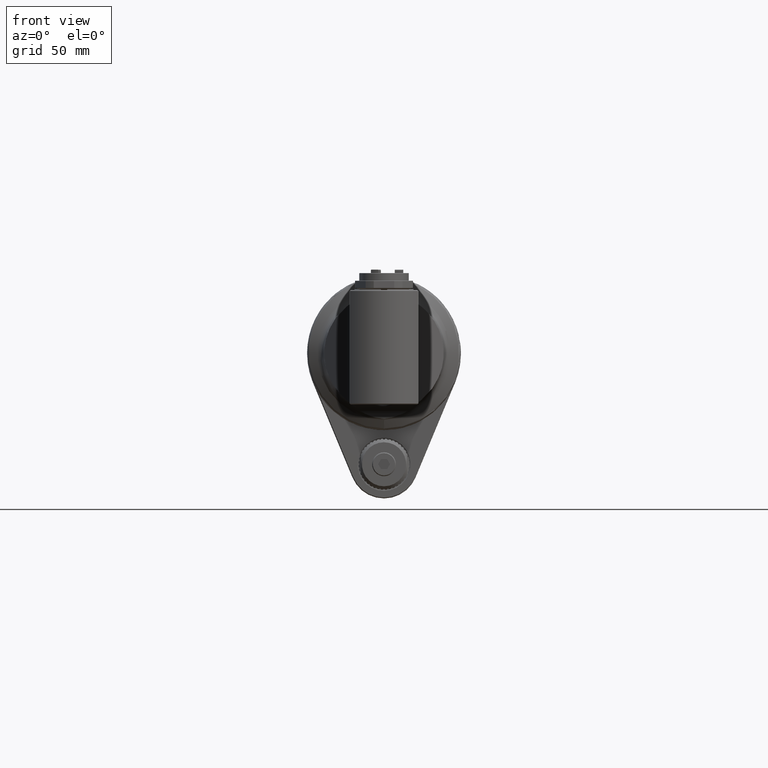
[diagram: clean part render]
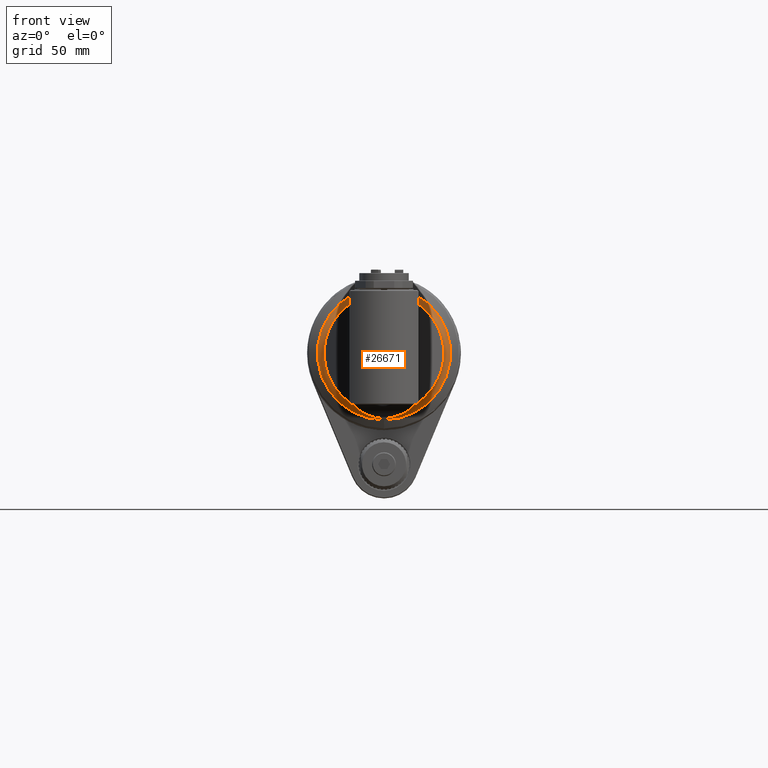
[diagram: same view with one face highlighted and labeled with its STEP entity id]
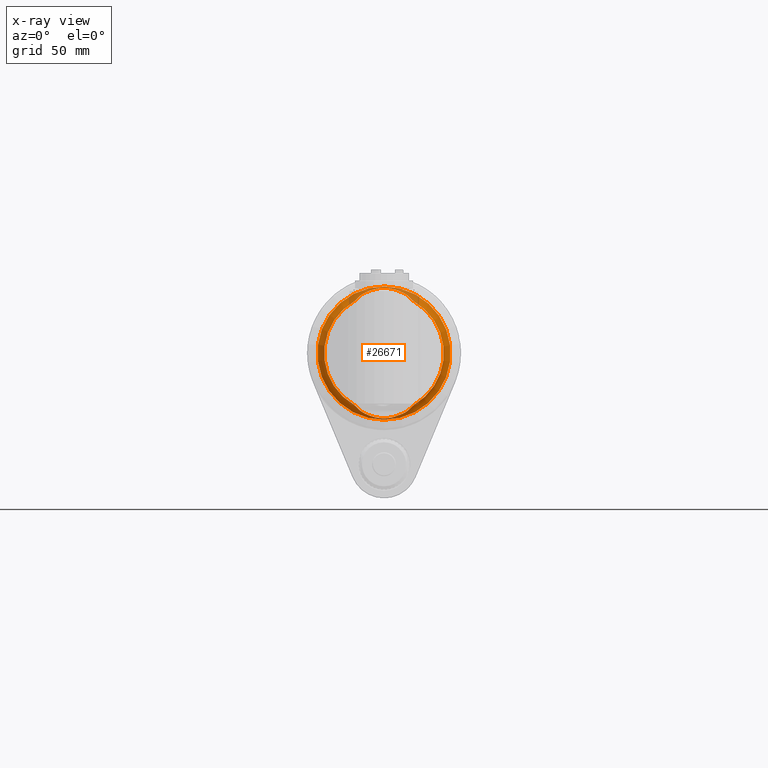
[diagram: x-ray of the same camera — body ghosted, the highlighted face saturated]
A machine part, front view. The second image highlights one B-rep face of the part: STEP entity #26671.
The next image is the same camera in x-ray: the body ghosted, the highlighted face saturated — about 12% of this face is hidden behind the body in this view.
In plain terms, the highlighted toroidal blend (fillet) surface has major radius 43 mm and minor (blend) radius 8 mm.
Its self-contained STEP definition (entity closure, byte-faithful):
#108=TOROIDAL_SURFACE('',#28771,43.,8.);
#183=B_SPLINE_CURVE_WITH_KNOTS('',3,(#42299,#42300,#42301,#42302,#42303,
#42304,#42305,#42306,#42307,#42308,#42309,#42310),.UNSPECIFIED.,.F.,.F.,
(4,2,2,2,2,4),(-13.7378022038327,-13.6980223017479,-13.2930273056113,-12.8880323094747,
-12.6407192186863,-12.5778600971058),.UNSPECIFIED.);
#184=B_SPLINE_CURVE_WITH_KNOTS('',3,(#42313,#42314,#42315,#42316,#42317,
#42318,#42319,#42320,#42321,#42322),.UNSPECIFIED.,.F.,.F.,(4,2,2,2,4),(-14.8181845063887,
-14.7553253848095,-14.5080122940211,-14.1030172978845,-13.7378022038327),
 .UNSPECIFIED.);
#185=B_SPLINE_CURVE_WITH_KNOTS('',3,(#42324,#42325,#42326,#42327,#42328,
#42329,#42330,#42331,#42332,#42333,#42334,#42335,#42336,#42337,#42338,#42339,
#42340,#42341,#42342,#42343,#42344,#42345,#42346,#42347,#42348,#42349,#42350,
#42351,#42352,#42353,#42354,#42355,#42356,#42357,#42358,#42359,#42360,#42361,
#42362,#42363,#42364,#42365,#42366,#42367,#42368,#42369,#42370,#42371,#42372,
#42373,#42374,#42375,#42376,#42377,#42378,#42379,#42380,#42381,#42382,#42383,
#42384,#42385,#42386,#42387,#42388,#42389,#42390,#42391,#42392,#42393,#42394,
#42395,#42396,#42397,#42398,#42399),.UNSPECIFIED.,.F.,.F.,(4,3,3,3,3,3,
3,3,3,3,3,3,3,3,3,3,3,3,3,3,3,3,3,3,3,4),(0.,0.04166666666667,0.08333333333333,
0.125,0.1666666666667,0.2083333333333,0.25,0.2916666666667,0.3333333333333,
0.375,0.4166666666667,0.4583333333333,0.5,0.5416666666667,0.5833333333333,
0.625,0.6666666666667,0.7083333333333,0.75,0.7916666666667,0.8333333333333,
0.875,0.9166666666667,0.95557840806874,0.9583333333333,1.),
 .UNSPECIFIED.);
#186=B_SPLINE_CURVE_WITH_KNOTS('',3,(#42403,#42404,#42405,#42406,#42407,
#42408,#42409,#42410,#42411,#42412,#42413,#42414,#42415,#42416,#42417,#42418,
#42419,#42420,#42421,#42422,#42423,#42424,#42425,#42426,#42427,#42428,#42429,
#42430,#42431,#42432,#42433,#42434,#42435,#42436,#42437,#42438,#42439,#42440,
#42441,#42442,#42443,#42444,#42445,#42446,#42447,#42448,#42449,#42450,#42451,
#42452,#42453,#42454,#42455,#42456,#42457,#42458,#42459,#42460,#42461,#42462,
#42463,#42464,#42465,#42466,#42467,#42468,#42469,#42470,#42471,#42472,#42473,
#42474,#42475,#42476,#42477,#42478),.UNSPECIFIED.,.F.,.F.,(4,3,3,3,3,3,
3,3,3,3,3,3,3,3,3,3,3,3,3,3,3,3,3,3,3,4),(0.,0.04166666666667,0.0804342178607859,
0.08333333333333,0.125,0.1666666666667,0.2083333333333,0.25,0.2916666666667,
0.3333333333333,0.375,0.4166666666667,0.4583333333333,0.5,0.5416666666667,
0.5833333333333,0.625,0.6666666666667,0.7083333333333,0.75,0.7916666666667,
0.8333333333333,0.875,0.9166666666667,0.9583333333333,1.),.UNSPECIFIED.);
#187=B_SPLINE_CURVE_WITH_KNOTS('',3,(#42480,#42481,#42482,#42483,#42484,
#42485,#42486,#42487,#42488,#42489,#42490,#42491,#42492,#42493,#42494,#42495,
#42496,#42497),.UNSPECIFIED.,.F.,.F.,(4,2,2,2,2,2,2,2,4),(12.5778600971084,
12.640719218692,12.8880323094802,13.2930273056156,13.698022301751,14.1030172978864,
14.5080122940217,14.75532538481,14.8181845063923),.UNSPECIFIED.);
#188=B_SPLINE_CURVE_WITH_KNOTS('',3,(#42499,#42500,#42501,#42502,#42503,
#42504,#42505,#42506,#42507,#42508,#42509,#42510,#42511,#42512,#42513,#42514,
#42515,#42516,#42517,#42518,#42519,#42520,#42521,#42522,#42523,#42524,#42525,
#42526,#42527,#42528,#42529,#42530,#42531,#42532,#42533,#42534,#42535,#42536,
#42537,#42538,#42539,#42540,#42541,#42542,#42543,#42544,#42545,#42546,#42547,
#42548,#42549,#42550,#42551,#42552,#42553,#42554,#42555,#42556,#42557,#42558,
#42559,#42560,#42561,#42562,#42563,#42564,#42565,#42566,#42567,#42568,#42569,
#42570,#42571,#42572,#42573,#42574,#42575,#42576,#42577),.UNSPECIFIED.,
 .F.,.F.,(4,3,3,3,3,3,3,3,3,3,3,3,3,3,3,3,3,3,3,3,3,3,3,3,3,3,4),(0.,0.04166666666667,
0.08333333333333,0.125,0.1666666666667,0.2083333333333,0.25,0.2916666666667,
0.3333333333333,0.375,0.4166666666667,0.4583333333333,0.5,0.5416666666667,
0.5833333333333,0.625,0.6666666666667,0.7083333333333,0.75,0.789126732267477,
0.7916666666667,0.8333333333333,0.875,0.9166666666667,0.954957464717606,
0.9583333333333,1.),.UNSPECIFIED.);
#189=B_SPLINE_CURVE_WITH_KNOTS('',3,(#42580,#42581,#42582,#42583,#42584,
#42585,#42586,#42587,#42588,#42589,#42590,#42591,#42592,#42593,#42594,#42595,
#42596,#42597,#42598,#42599,#42600,#42601,#42602,#42603,#42604,#42605,#42606,
#42607,#42608,#42609,#42610,#42611,#42612,#42613,#42614,#42615,#42616,#42617,
#42618,#42619,#42620,#42621,#42622,#42623,#42624,#42625,#42626,#42627,#42628,
#42629,#42630,#42631,#42632,#42633,#42634,#42635,#42636,#42637,#42638,#42639,
#42640,#42641,#42642,#42643,#42644,#42645,#42646,#42647,#42648,#42649,#42650,
#42651,#42652,#42653,#42654,#42655),.UNSPECIFIED.,.F.,.F.,(4,3,3,3,3,3,
3,3,3,3,3,3,3,3,3,3,3,3,3,3,3,3,3,3,3,4),(0.,0.04166666666667,0.0805791188444732,
0.08333333333333,0.125,0.1666666666667,0.2083333333333,0.25,0.2916666666667,
0.3333333333333,0.375,0.4166666666667,0.4583333333333,0.5,0.5416666666667,
0.5833333333333,0.625,0.6666666666667,0.7083333333333,0.75,0.7916666666667,
0.8333333333333,0.875,0.9166666666667,0.9583333333333,1.),.UNSPECIFIED.);
#1482=CIRCLE('',#28769,39.);
#1483=CIRCLE('',#28770,39.);
#1484=CIRCLE('',#28772,8.);
#1485=CIRCLE('',#28773,35.);
#1486=CIRCLE('',#28774,35.);
#2695=FACE_OUTER_BOUND('',#4280,.T.);
#4280=EDGE_LOOP('',(#19856,#19857,#19858,#19859,#19860,#19861,#19862,#19863,
#19864,#19865,#19866,#19867,#19868));
#11434=VERTEX_POINT('',#42291);
#11435=VERTEX_POINT('',#42293);
#11436=VERTEX_POINT('',#42297);
#11437=VERTEX_POINT('',#42298);
#11438=VERTEX_POINT('',#42312);
#11439=VERTEX_POINT('',#42323);
#11440=VERTEX_POINT('',#42400);
#11441=VERTEX_POINT('',#42402);
#11442=VERTEX_POINT('',#42479);
#11443=VERTEX_POINT('',#42498);
#11444=VERTEX_POINT('',#42578);
#14519=EDGE_CURVE('',#11435,#11434,#1482,.T.);
#14520=EDGE_CURVE('',#11434,#11435,#1483,.T.);
#14521=EDGE_CURVE('',#11436,#11437,#183,.F.);
#14522=EDGE_CURVE('',#11437,#11435,#1484,.T.);
#14523=EDGE_CURVE('',#11437,#11438,#184,.F.);
#14524=EDGE_CURVE('',#11438,#11439,#185,.T.);
#14525=EDGE_CURVE('',#11440,#11439,#1485,.T.);
#14526=EDGE_CURVE('',#11440,#11441,#186,.T.);
#14527=EDGE_CURVE('',#11441,#11442,#187,.T.);
#14528=EDGE_CURVE('',#11442,#11443,#188,.T.);
#14529=EDGE_CURVE('',#11444,#11443,#1486,.T.);
#14530=EDGE_CURVE('',#11444,#11436,#189,.T.);
#19856=ORIENTED_EDGE('',*,*,#14521,.T.);
#19857=ORIENTED_EDGE('',*,*,#14522,.T.);
#19858=ORIENTED_EDGE('',*,*,#14519,.T.);
#19859=ORIENTED_EDGE('',*,*,#14520,.T.);
#19860=ORIENTED_EDGE('',*,*,#14522,.F.);
#19861=ORIENTED_EDGE('',*,*,#14523,.T.);
#19862=ORIENTED_EDGE('',*,*,#14524,.T.);
#19863=ORIENTED_EDGE('',*,*,#14525,.F.);
#19864=ORIENTED_EDGE('',*,*,#14526,.T.);
#19865=ORIENTED_EDGE('',*,*,#14527,.T.);
#19866=ORIENTED_EDGE('',*,*,#14528,.T.);
#19867=ORIENTED_EDGE('',*,*,#14529,.F.);
#19868=ORIENTED_EDGE('',*,*,#14530,.T.);
#26671=ADVANCED_FACE('',(#2695),#108,.F.);
#28769=AXIS2_PLACEMENT_3D('',#42294,#33065,#33066);
#28770=AXIS2_PLACEMENT_3D('',#42295,#33067,#33068);
#28771=AXIS2_PLACEMENT_3D('',#42296,#33069,#33070);
#28772=AXIS2_PLACEMENT_3D('',#42311,#33071,#33072);
#28773=AXIS2_PLACEMENT_3D('',#42401,#33073,#33074);
#28774=AXIS2_PLACEMENT_3D('',#42579,#33075,#33076);
#33065=DIRECTION('center_axis',(0.,1.,0.));
#33066=DIRECTION('ref_axis',(-1.,0.,0.));
#33067=DIRECTION('center_axis',(0.,1.,0.));
#33068=DIRECTION('ref_axis',(-1.,0.,0.));
#33069=DIRECTION('center_axis',(0.,1.,0.));
#33070=DIRECTION('ref_axis',(0.999945003641186,0.,0.0104875971046199));
#33071=DIRECTION('center_axis',(0.0104875971046197,0.,-0.999945003641186));
#33072=DIRECTION('ref_axis',(-0.999945003641186,0.,-0.0104875971046197));
#33073=DIRECTION('center_axis',(0.,1.,0.));
#33074=DIRECTION('ref_axis',(0.865703462490004,0.,-0.500557204555902));
#33075=DIRECTION('center_axis',(0.,1.,0.));
#33076=DIRECTION('ref_axis',(-0.865703462490004,0.,0.500557204555902));
#42291=CARTESIAN_POINT('',(38.9999999999974,38.4641016151356,4.77612251667436E-15));
#42293=CARTESIAN_POINT('',(-38.9978551420063,38.46410161514,-0.409016287080169));
#42294=CARTESIAN_POINT('Origin',(0.,38.46410161514,0.));
#42295=CARTESIAN_POINT('Origin',(0.,38.46410161514,0.));
#42296=CARTESIAN_POINT('Origin',(0.,45.39230484541,0.));
#42297=CARTESIAN_POINT('',(-35.26383885339,40.04367285338,11.36788069341));
#42298=CARTESIAN_POINT('',(-38.2413415089381,38.9599505143173,-0.401081840526887));
#42299=CARTESIAN_POINT('Ctrl Pts',(-38.2413415089381,38.9599505143173,-0.401081840527046));
#42300=CARTESIAN_POINT('Ctrl Pts',(-38.2441246155634,38.9589375463469,-0.266341423830267));
#42301=CARTESIAN_POINT('Ctrl Pts',(-38.2454847436221,38.9584425002188,-0.132599673616175));
#42302=CARTESIAN_POINT('Ctrl Pts',(-38.2454847436221,38.9584425002188,1.34998332045535));
#42303=CARTESIAN_POINT('Ctrl Pts',(-38.0909820629314,39.0146768771045,2.81798982273538));
#42304=CARTESIAN_POINT('Ctrl Pts',(-37.4896495701843,39.2335440053616,5.69207543368899));
#42305=CARTESIAN_POINT('Ctrl Pts',(-37.0504436962752,39.3934018701794,7.09995497122563));
#42306=CARTESIAN_POINT('Ctrl Pts',(-36.2869596295705,39.6712873447964,9.11681253003508));
#42307=CARTESIAN_POINT('Ctrl Pts',(-35.9382018007334,39.7982248134605,9.9435818588829));
#42308=CARTESIAN_POINT('Ctrl Pts',(-35.4619060514545,39.9715822889055,10.9600495702855));
#42309=CARTESIAN_POINT('Ctrl Pts',(-35.3634834504906,40.0074051860354,11.1650514609152));
#42310=CARTESIAN_POINT('Ctrl Pts',(-35.2638388533836,40.0436728533878,11.3678806934175));
#42311=CARTESIAN_POINT('Origin',(-42.997635156571,45.39230484541,-0.450966675498648));
#42312=CARTESIAN_POINT('',(-35.26383885339,40.04367285338,-11.36788069341));
#42313=CARTESIAN_POINT('Ctrl Pts',(-35.2638388533896,40.0436728533856,-11.3678806934053));
#42314=CARTESIAN_POINT('Ctrl Pts',(-35.3634834504946,40.007405186034,-11.165051460907));
#42315=CARTESIAN_POINT('Ctrl Pts',(-35.4619060514564,39.9715822889048,-10.9600495702814));
#42316=CARTESIAN_POINT('Ctrl Pts',(-35.9382018007334,39.7982248134605,-9.9435818588829));
#42317=CARTESIAN_POINT('Ctrl Pts',(-36.2869596295705,39.6712873447964,-9.11681253003508));
#42318=CARTESIAN_POINT('Ctrl Pts',(-37.0504436962752,39.3934018701794,-7.09995497122563));
#42319=CARTESIAN_POINT('Ctrl Pts',(-37.4896495701843,39.2335440053616,-5.69207543368899));
#42320=CARTESIAN_POINT('Ctrl Pts',(-38.061449663877,39.0254257913068,-2.95914075704057));
#42321=CARTESIAN_POINT('Ctrl Pts',(-38.2157900999439,38.9692504666347,-1.63811942426772));
#42322=CARTESIAN_POINT('Ctrl Pts',(-38.2413415089381,38.9599505143173,-0.401081840527046));
#42323=CARTESIAN_POINT('',(-30.29962118715,45.39230484541,-17.51950215946));
#42324=CARTESIAN_POINT('Ctrl Pts',(-35.2638388533917,40.0436728533816,-11.3678806934105));
#42325=CARTESIAN_POINT('Ctrl Pts',(-35.18904577304,40.07089530836,-11.52012400137));
#42326=CARTESIAN_POINT('Ctrl Pts',(-35.1138103405742,40.0995480447008,-11.6669347504388));
#42327=CARTESIAN_POINT('Ctrl Pts',(-35.0385230093969,40.1295481898045,-11.808283002059));
#42328=CARTESIAN_POINT('Ctrl Pts',(-34.9632356782196,40.1595483349081,-11.9496312536792));
#42329=CARTESIAN_POINT('Ctrl Pts',(-34.8878975485239,40.1908969065948,-12.0855173765078));
#42330=CARTESIAN_POINT('Ctrl Pts',(-34.8125372282882,40.2236337636182,-12.2165789244799));
#42331=CARTESIAN_POINT('Ctrl Pts',(-34.7371769080525,40.2563706206415,-12.347640472452));
#42332=CARTESIAN_POINT('Ctrl Pts',(-34.6617940365719,40.2904954488441,-12.4738773137666));
#42333=CARTESIAN_POINT('Ctrl Pts',(-34.5863538669918,40.3260897655436,-12.5959111226894));
#42334=CARTESIAN_POINT('Ctrl Pts',(-34.5109136974117,40.3616840822431,-12.7179449316123));
#42335=CARTESIAN_POINT('Ctrl Pts',(-34.4354158077517,40.398747516227,-12.8357755563637));
#42336=CARTESIAN_POINT('Ctrl Pts',(-34.3599050800852,40.4373308213293,-12.9498199062475));
#42337=CARTESIAN_POINT('Ctrl Pts',(-34.284394352419,40.4759141264315,-13.063864256131));
#42338=CARTESIAN_POINT('Ctrl Pts',(-34.2088705765836,40.5160171268097,-13.1741222514495));
#42339=CARTESIAN_POINT('Ctrl Pts',(-34.1332670345877,40.5577592310929,-13.2811152319705));
#42340=CARTESIAN_POINT('Ctrl Pts',(-34.0576634925917,40.5995013353762,-13.3881082124917));
#42341=CARTESIAN_POINT('Ctrl Pts',(-33.9819797509665,40.6428821902793,-13.4918360097537));
#42342=CARTESIAN_POINT('Ctrl Pts',(-33.9061494859549,40.688049485195,-13.5927427546316));
#42343=CARTESIAN_POINT('Ctrl Pts',(-33.8303192209434,40.7332167801106,-13.6936494995096));
#42344=CARTESIAN_POINT('Ctrl Pts',(-33.7543423049891,40.7801704133908,-13.7917351415805));
#42345=CARTESIAN_POINT('Ctrl Pts',(-33.6782976927495,40.8289861669899,-13.8872222156984));
#42346=CARTESIAN_POINT('Ctrl Pts',(-33.60225308051,40.8778019205888,-13.9827092898161));
#42347=CARTESIAN_POINT('Ctrl Pts',(-33.526140463779,40.9284795672352,-14.0755976674669));
#42348=CARTESIAN_POINT('Ctrl Pts',(-33.449937698067,40.9811733145871,-14.1662235334725));
#42349=CARTESIAN_POINT('Ctrl Pts',(-33.3737349323549,41.0338670619392,-14.2568493994783));
#42350=CARTESIAN_POINT('Ctrl Pts',(-33.2974416034183,41.0885766070035,-14.3452125802106));
#42351=CARTESIAN_POINT('Ctrl Pts',(-33.2210269056098,41.1454974790654,-14.4316293900542));
#42352=CARTESIAN_POINT('Ctrl Pts',(-33.1446122078013,41.2024183511273,-14.5180461998978));
#42353=CARTESIAN_POINT('Ctrl Pts',(-33.0680763840251,41.2615507154982,-14.6025167446197));
#42354=CARTESIAN_POINT('Ctrl Pts',(-32.9915486757508,41.322991690518,-14.6851783660315));
#42355=CARTESIAN_POINT('Ctrl Pts',(-32.9150209674766,41.3844326655377,-14.7678399874432));
#42356=CARTESIAN_POINT('Ctrl Pts',(-32.8385009515276,41.4481819870382,-14.84869249446));
#42357=CARTESIAN_POINT('Ctrl Pts',(-32.7620461401956,41.5144097578074,-14.9279659805876));
#42358=CARTESIAN_POINT('Ctrl Pts',(-32.6855913288634,41.5806375285767,-15.0072394667154));
#42359=CARTESIAN_POINT('Ctrl Pts',(-32.6092013822321,41.6493435252295,-15.0849337814687));
#42360=CARTESIAN_POINT('Ctrl Pts',(-32.5329448485884,41.7207251439324,-15.1612722950043));
#42361=CARTESIAN_POINT('Ctrl Pts',(-32.4566883149448,41.7921067626354,-15.2376108085398));
#42362=CARTESIAN_POINT('Ctrl Pts',(-32.3805661414724,41.8661645459113,-15.312593961655));
#42363=CARTESIAN_POINT('Ctrl Pts',(-32.3048299753274,41.942936646898,-15.3862896405833));
#42364=CARTESIAN_POINT('Ctrl Pts',(-32.2290938091826,42.0197087478846,-15.4599853195113));
#42365=CARTESIAN_POINT('Ctrl Pts',(-32.1537431436275,42.0991949122542,-15.5323932794006));
#42366=CARTESIAN_POINT('Ctrl Pts',(-32.0789570286577,42.1815065663386,-15.6036850232953));
#42367=CARTESIAN_POINT('Ctrl Pts',(-32.0041709136878,42.2638182204232,-15.6749767671902));
#42368=CARTESIAN_POINT('Ctrl Pts',(-31.9299496064713,42.3489554577522,-15.7451524275928));
#42369=CARTESIAN_POINT('Ctrl Pts',(-31.8565235239857,42.4369873620788,-15.814358291392));
#42370=CARTESIAN_POINT('Ctrl Pts',(-31.7830974415,42.5250192664054,-15.8835641551912));
#42371=CARTESIAN_POINT('Ctrl Pts',(-31.7104684821179,42.6159466895156,-15.9518011627567));
#42372=CARTESIAN_POINT('Ctrl Pts',(-31.6390206473186,42.7096221556081,-16.0191007408212));
#42373=CARTESIAN_POINT('Ctrl Pts',(-31.5675728125196,42.8032976217003,-16.0864003188855));
#42374=CARTESIAN_POINT('Ctrl Pts',(-31.4973056661358,42.8997209841853,-16.152762240602));
#42375=CARTESIAN_POINT('Ctrl Pts',(-31.4285145229428,42.9988045192172,-16.2183209197753));
#42376=CARTESIAN_POINT('Ctrl Pts',(-31.3597233797496,43.0978880542494,-16.2838795989487));
#42377=CARTESIAN_POINT('Ctrl Pts',(-31.2924083282056,43.1996317538774,-16.3486350892282));
#42378=CARTESIAN_POINT('Ctrl Pts',(-31.2268467134278,43.3039383344998,-16.4127449779664));
#42379=CARTESIAN_POINT('Ctrl Pts',(-31.1612850986499,43.4082449151222,-16.4768548667046));
#42380=CARTESIAN_POINT('Ctrl Pts',(-31.097479342711,43.5151151101965,-16.5403204282198));
#42381=CARTESIAN_POINT('Ctrl Pts',(-31.035799273906,43.624221535363,-16.6032011585323));
#42382=CARTESIAN_POINT('Ctrl Pts',(-30.9741192051011,43.7333279605292,-16.6660818888446));
#42383=CARTESIAN_POINT('Ctrl Pts',(-30.914564934549,43.8446707106897,-16.7283778348886));
#42384=CARTESIAN_POINT('Ctrl Pts',(-30.8574316389797,43.9579212686633,-16.7901941868355));
#42385=CARTESIAN_POINT('Ctrl Pts',(-30.8002983434102,44.0711718266372,-16.8520105387825));
#42386=CARTESIAN_POINT('Ctrl Pts',(-30.7455839225764,44.1863297186771,-16.9133461605231));
#42387=CARTESIAN_POINT('Ctrl Pts',(-30.6934499537132,44.3032502807217,-16.9744179914082));
#42388=CARTESIAN_POINT('Ctrl Pts',(-30.64131598485,44.4201708427662,-17.0354898222934));
#42389=CARTESIAN_POINT('Ctrl Pts',(-30.5917652832135,44.5388544635792,-17.0962994285284));
#42390=CARTESIAN_POINT('Ctrl Pts',(-30.5450260671308,44.6589106548984,-17.1569417642404));
#42391=CARTESIAN_POINT('Ctrl Pts',(-30.5013771641817,44.7710289461861,-17.2135745374863));
#42392=CARTESIAN_POINT('Ctrl Pts',(-30.4601805666482,44.8843443313574,-17.2700615899841));
#42393=CARTESIAN_POINT('Ctrl Pts',(-30.421584728575,44.9984769070792,-17.3264610566366));
#42394=CARTESIAN_POINT('Ctrl Pts',(-30.4188521690548,45.006557417101,-17.330454101152));
#42395=CARTESIAN_POINT('Ctrl Pts',(-30.4161326275239,45.0146420182391,-17.3344466963631));
#42396=CARTESIAN_POINT('Ctrl Pts',(-30.4134261482071,45.0227305734612,-17.3384388581298));
#42397=CARTESIAN_POINT('Ctrl Pts',(-30.3724921987516,45.1450653382521,-17.3988180182302));
#42398=CARTESIAN_POINT('Ctrl Pts',(-30.3345471097371,45.26830571151,-17.4590984896283));
#42399=CARTESIAN_POINT('Ctrl Pts',(-30.2996211871486,45.39230484541,-17.5195021594592));
#42400=CARTESIAN_POINT('',(30.29962118715,45.39230484541,-17.51950215946));
#42401=CARTESIAN_POINT('Origin',(0.,45.39230484541,0.));
#42402=CARTESIAN_POINT('',(35.26383885339,40.04367285338,-11.36788069341));
#42403=CARTESIAN_POINT('Ctrl Pts',(30.2996211871509,45.3923048454102,-17.51950215946));
#42404=CARTESIAN_POINT('Ctrl Pts',(30.3345527138843,45.2682858148512,-17.45908879737));
#42405=CARTESIAN_POINT('Ctrl Pts',(30.372500185549,45.1450428455582,-17.398806152005));
#42406=CARTESIAN_POINT('Ctrl Pts',(30.4134266024378,45.0227292159348,-17.3384381881242));
#42407=CARTESIAN_POINT('Ctrl Pts',(30.451505409524,44.9089260183788,-17.2822705529985));
#42408=CARTESIAN_POINT('Ctrl Pts',(30.4921665983406,44.7959284468445,-17.2260290590276));
#42409=CARTESIAN_POINT('Ctrl Pts',(30.535271825354,44.6840914241773,-17.1696485203548));
#42410=CARTESIAN_POINT('Ctrl Pts',(30.538495320951,44.6757280266236,-17.1654322702441));
#42411=CARTESIAN_POINT('Ctrl Pts',(30.5417324619663,44.6673711104625,-17.1612152425467));
#42412=CARTESIAN_POINT('Ctrl Pts',(30.5449831796961,44.6590208197155,-17.1569974100017));
#42413=CARTESIAN_POINT('Ctrl Pts',(30.5917031442358,44.5390087731378,-17.0963778781567));
#42414=CARTESIAN_POINT('Ctrl Pts',(30.6412314109162,44.4203667838004,-17.0355920968634));
#42415=CARTESIAN_POINT('Ctrl Pts',(30.6933739950308,44.3034206366229,-16.97450697486));
#42416=CARTESIAN_POINT('Ctrl Pts',(30.7455165791456,44.1864744894452,-16.9134218528567));
#42417=CARTESIAN_POINT('Ctrl Pts',(30.8002740339954,44.0712244280623,-16.8520373901433));
#42418=CARTESIAN_POINT('Ctrl Pts',(30.8573878631008,43.9580080440001,-16.7902415510299));
#42419=CARTESIAN_POINT('Ctrl Pts',(30.9145016922062,43.8447916599382,-16.7284457119166));
#42420=CARTESIAN_POINT('Ctrl Pts',(30.9739696734227,43.7336078444873,-16.6662384964034));
#42421=CARTESIAN_POINT('Ctrl Pts',(31.0355665695413,43.6246331977711,-16.6034383996435));
#42422=CARTESIAN_POINT('Ctrl Pts',(31.0971634656602,43.5156585510546,-16.5406383028834));
#42423=CARTESIAN_POINT('Ctrl Pts',(31.1608914550911,43.4088943604792,-16.4772453248767));
#42424=CARTESIAN_POINT('Ctrl Pts',(31.2264089464964,43.3046348834942,-16.4131730700833));
#42425=CARTESIAN_POINT('Ctrl Pts',(31.2919264379017,43.2003754065092,-16.34910081529));
#42426=CARTESIAN_POINT('Ctrl Pts',(31.359233204749,43.0986203797158,-16.2843492837099));
#42427=CARTESIAN_POINT('Ctrl Pts',(31.427950753558,42.9996166539461,-16.2188582109815));
#42428=CARTESIAN_POINT('Ctrl Pts',(31.4966683023668,42.9006129281766,-16.1533671382533));
#42429=CARTESIAN_POINT('Ctrl Pts',(31.5667928291385,42.8043579030815,-16.0871365243767));
#42430=CARTESIAN_POINT('Ctrl Pts',(31.6381011161353,42.7108280008427,-16.0199668874052));
#42431=CARTESIAN_POINT('Ctrl Pts',(31.7094094031323,42.6172980986036,-15.9527972504334));
#42432=CARTESIAN_POINT('Ctrl Pts',(31.7819027894927,42.5264944154799,-15.8846885903667));
#42433=CARTESIAN_POINT('Ctrl Pts',(31.8552839104644,42.4384739103048,-15.81552664851));
#42434=CARTESIAN_POINT('Ctrl Pts',(31.9286650314361,42.3504534051297,-15.7463647066533));
#42435=CARTESIAN_POINT('Ctrl Pts',(32.0029342273449,42.2652163003686,-15.6761494830066));
#42436=CARTESIAN_POINT('Ctrl Pts',(32.0777608299753,42.1828234272733,-15.6048252830515));
#42437=CARTESIAN_POINT('Ctrl Pts',(32.1525874326056,42.1004305541781,-15.5335010830966));
#42438=CARTESIAN_POINT('Ctrl Pts',(32.2279699523802,42.0208805182258,-15.4610679068334));
#42439=CARTESIAN_POINT('Ctrl Pts',(32.3036705628265,41.9441121699585,-15.3874177348552));
#42440=CARTESIAN_POINT('Ctrl Pts',(32.3793711732731,41.8673438216911,-15.3137675628768));
#42441=CARTESIAN_POINT('Ctrl Pts',(32.4553879560294,41.7933553282781,-15.2389003951834));
#42442=CARTESIAN_POINT('Ctrl Pts',(32.5316426124992,41.7219443891192,-15.1625758299917));
#42443=CARTESIAN_POINT('Ctrl Pts',(32.6078972689689,41.6505334499603,-15.0862512647999));
#42444=CARTESIAN_POINT('Ctrl Pts',(32.6843912190177,41.5817016237133,-15.0084693021099));
#42445=CARTESIAN_POINT('Ctrl Pts',(32.7609510543669,41.5153585331732,-14.9291013344865));
#42446=CARTESIAN_POINT('Ctrl Pts',(32.837510889716,41.4490154426333,-14.8497333668633));
#42447=CARTESIAN_POINT('Ctrl Pts',(32.9141364568191,41.3851608173178,-14.7687793943067));
#42448=CARTESIAN_POINT('Ctrl Pts',(32.9906839565823,41.3236860420037,-14.6861123108502));
#42449=CARTESIAN_POINT('Ctrl Pts',(33.0672314563458,41.2622112666895,-14.6034452273935));
#42450=CARTESIAN_POINT('Ctrl Pts',(33.1436991192438,41.2031141854614,-14.5190650330367));
#42451=CARTESIAN_POINT('Ctrl Pts',(33.2201484636459,41.146151911129,-14.4326227341067));
#42452=CARTESIAN_POINT('Ctrl Pts',(33.296597808048,41.0891896367966,-14.3461804351766));
#42453=CARTESIAN_POINT('Ctrl Pts',(33.3730301550858,41.0343639967873,-14.2576760316732));
#42454=CARTESIAN_POINT('Ctrl Pts',(33.4493839386778,40.9815562706454,-14.1668820619765));
#42455=CARTESIAN_POINT('Ctrl Pts',(33.5257377222695,40.9287485445037,-14.0760880922799));
#42456=CARTESIAN_POINT('Ctrl Pts',(33.6020132662059,40.8779591327835,-13.9830045563901));
#42457=CARTESIAN_POINT('Ctrl Pts',(33.6781250893378,40.8290969715613,-13.8874389422352));
#42458=CARTESIAN_POINT('Ctrl Pts',(33.75423691247,40.780234810339,-13.7918733280802));
#42459=CARTESIAN_POINT('Ctrl Pts',(33.8301842451049,40.7332986888694,-13.6938256356601));
#42460=CARTESIAN_POINT('Ctrl Pts',(33.9060048391108,40.6881356430001,-13.592935233825));
#42461=CARTESIAN_POINT('Ctrl Pts',(33.9818254331166,40.6429725971309,-13.4920448319899));
#42462=CARTESIAN_POINT('Ctrl Pts',(34.0575190128041,40.5995822191204,-13.3883117207398));
#42463=CARTESIAN_POINT('Ctrl Pts',(34.1331858041143,40.5578040805146,-13.2812301868614));
#42464=CARTESIAN_POINT('Ctrl Pts',(34.2088525954243,40.5160259419089,-13.1741486529832));
#42465=CARTESIAN_POINT('Ctrl Pts',(34.2844934673284,40.4758616172726,-13.0637186964768));
#42466=CARTESIAN_POINT('Ctrl Pts',(34.3600788707457,40.4372420220835,-12.9495574246969));
#42467=CARTESIAN_POINT('Ctrl Pts',(34.4356642741632,40.3986224268942,-12.8353961529169));
#42468=CARTESIAN_POINT('Ctrl Pts',(34.5111941385292,40.3615473819011,-12.7175035658634));
#42469=CARTESIAN_POINT('Ctrl Pts',(34.5866629924243,40.3259439233417,-12.595411045575));
#42470=CARTESIAN_POINT('Ctrl Pts',(34.6621318463193,40.2903404647824,-12.4733185252866));
#42471=CARTESIAN_POINT('Ctrl Pts',(34.7375395767737,40.2562083740206,-12.3470260717631));
#42472=CARTESIAN_POINT('Ctrl Pts',(34.8129110763181,40.223471374439,-12.2159287115097));
#42473=CARTESIAN_POINT('Ctrl Pts',(34.8882825758623,40.1907343748575,-12.0848313512566));
#42474=CARTESIAN_POINT('Ctrl Pts',(34.9636182795768,40.1593935288276,-11.9489290842734));
#42475=CARTESIAN_POINT('Ctrl Pts',(35.0388455239416,40.1294196776798,-11.8076774796895));
#42476=CARTESIAN_POINT('Ctrl Pts',(35.1140727683066,40.0994458265321,-11.6664258751052));
#42477=CARTESIAN_POINT('Ctrl Pts',(35.1891926973992,40.0708418322675,-11.51982493292));
#42478=CARTESIAN_POINT('Ctrl Pts',(35.2638388533914,40.0436728533839,-11.36788069341));
#42479=CARTESIAN_POINT('',(35.26383885339,40.04367285338,11.36788069341));
#42480=CARTESIAN_POINT('Ctrl Pts',(35.2638388533894,40.0436728533802,-11.3678806934217));
#42481=CARTESIAN_POINT('Ctrl Pts',(35.3634834505016,40.0074051860259,-11.1650514609094));
#42482=CARTESIAN_POINT('Ctrl Pts',(35.4619060514704,39.9715822888942,-10.9600495702693));
#42483=CARTESIAN_POINT('Ctrl Pts',(35.9382018007537,39.7982248134476,-9.94358185885663));
#42484=CARTESIAN_POINT('Ctrl Pts',(36.2869596295904,39.6712873447837,-9.11681253000929));
#42485=CARTESIAN_POINT('Ctrl Pts',(37.050443696293,39.3934018701674,-7.09995497120399));
#42486=CARTESIAN_POINT('Ctrl Pts',(37.4896495702007,39.2335440053501,-5.69207543367162));
#42487=CARTESIAN_POINT('Ctrl Pts',(38.0909820629463,39.0146768770936,-2.81798982272678));
#42488=CARTESIAN_POINT('Ctrl Pts',(38.2454847436367,38.9584425002079,-1.34998332045125));
#42489=CARTESIAN_POINT('Ctrl Pts',(38.2454847436367,38.9584425002079,1.34998332045125));
#42490=CARTESIAN_POINT('Ctrl Pts',(38.0909820629463,39.0146768770936,2.81798982272677));
#42491=CARTESIAN_POINT('Ctrl Pts',(37.4896495702007,39.2335440053501,5.69207543367161));
#42492=CARTESIAN_POINT('Ctrl Pts',(37.050443696293,39.3934018701674,7.09995497120399));
#42493=CARTESIAN_POINT('Ctrl Pts',(36.2869596295904,39.6712873447837,9.11681253000929));
#42494=CARTESIAN_POINT('Ctrl Pts',(35.9382018007537,39.7982248134476,9.94358185885663));
#42495=CARTESIAN_POINT('Ctrl Pts',(35.4619060514724,39.9715822888935,10.9600495702652));
#42496=CARTESIAN_POINT('Ctrl Pts',(35.3634834505055,40.0074051860245,11.1650514609012));
#42497=CARTESIAN_POINT('Ctrl Pts',(35.2638388533954,40.043672853378,11.3678806934095));
#42498=CARTESIAN_POINT('',(30.29962118715,45.39230484541,17.51950215946));
#42499=CARTESIAN_POINT('Ctrl Pts',(35.2638388533914,40.0436728533839,11.36788069341));
#42500=CARTESIAN_POINT('Ctrl Pts',(35.1891838521396,40.0708450516787,11.51984293769));
#42501=CARTESIAN_POINT('Ctrl Pts',(35.1140547226361,40.0994526932617,11.666461116095));
#42502=CARTESIAN_POINT('Ctrl Pts',(35.0388179453736,40.1294306662566,11.8077292612275));
#42503=CARTESIAN_POINT('Ctrl Pts',(34.9635811681112,40.1594086392516,11.94899740636));
#42504=CARTESIAN_POINT('Ctrl Pts',(34.8882355994496,40.1907540827896,12.08491551822));
#42505=CARTESIAN_POINT('Ctrl Pts',(34.8128540669454,40.223496136261,12.2160278698866));
#42506=CARTESIAN_POINT('Ctrl Pts',(34.7374725344413,40.2562381897323,12.3471402215533));
#42507=CARTESIAN_POINT('Ctrl Pts',(34.6620546028931,40.2903757905555,12.4734468130266));
#42508=CARTESIAN_POINT('Ctrl Pts',(34.5865755287769,40.3259851861536,12.5955525417849));
#42509=CARTESIAN_POINT('Ctrl Pts',(34.5110964546606,40.3615945817518,12.7176582705434));
#42510=CARTESIAN_POINT('Ctrl Pts',(34.435556350166,40.398675989111,12.8355631365868));
#42511=CARTESIAN_POINT('Ctrl Pts',(34.3599606739082,40.4373024147952,12.9497359425903));
#42512=CARTESIAN_POINT('Ctrl Pts',(34.2843649976506,40.4759288404793,13.0639087485934));
#42513=CARTESIAN_POINT('Ctrl Pts',(34.2087138209872,40.5161004650665,13.1743494945566));
#42514=CARTESIAN_POINT('Ctrl Pts',(34.1330368077146,40.5578863484239,13.2814410352631));
#42515=CARTESIAN_POINT('Ctrl Pts',(34.0573597944419,40.5996722317814,13.3885325759698));
#42516=CARTESIAN_POINT('Ctrl Pts',(33.9816560776152,40.6430708035063,13.4922749114199));
#42517=CARTESIAN_POINT('Ctrl Pts',(33.905825915416,40.6882422232555,13.5931733145333));
#42518=CARTESIAN_POINT('Ctrl Pts',(33.8299957532167,40.7334136430047,13.6940717176467));
#42519=CARTESIAN_POINT('Ctrl Pts',(33.7540394121357,40.7803583029408,13.7921261884235));
#42520=CARTESIAN_POINT('Ctrl Pts',(33.6779182426913,40.8292297671682,13.8876986535486));
#42521=CARTESIAN_POINT('Ctrl Pts',(33.6017970732471,40.8781012313953,13.9832711186734));
#42522=CARTESIAN_POINT('Ctrl Pts',(33.525511850302,40.928900718349,14.0763615781466));
#42523=CARTESIAN_POINT('Ctrl Pts',(33.4491479158426,40.9817195147769,14.1671627140214));
#42524=CARTESIAN_POINT('Ctrl Pts',(33.3727839813831,41.034538311205,14.2579638498965));
#42525=CARTESIAN_POINT('Ctrl Pts',(33.2963410106589,41.0893760154073,14.3464756621733));
#42526=CARTESIAN_POINT('Ctrl Pts',(33.2198803816505,41.1463516672718,14.4329258452583));
#42527=CARTESIAN_POINT('Ctrl Pts',(33.1434197526422,41.2033273191364,14.5193760283434));
#42528=CARTESIAN_POINT('Ctrl Pts',(33.0669401488699,41.2624390972054,14.6037645822368));
#42529=CARTESIAN_POINT('Ctrl Pts',(32.9903804286081,41.3239298153996,14.6864401016635));
#42530=CARTESIAN_POINT('Ctrl Pts',(32.9138207083464,41.3854205335937,14.7691156210901));
#42531=CARTESIAN_POINT('Ctrl Pts',(32.8371826530386,41.4492923626802,14.8500781060499));
#42532=CARTESIAN_POINT('Ctrl Pts',(32.7606114757049,41.5156528124942,14.9294533580381));
#42533=CARTESIAN_POINT('Ctrl Pts',(32.6840402983709,41.5820132623084,15.0088286100265));
#42534=CARTESIAN_POINT('Ctrl Pts',(32.6075361568784,41.6508626078382,15.0866166290433));
#42535=CARTESIAN_POINT('Ctrl Pts',(32.5312739528629,41.7222896532362,15.16294481434));
#42536=CARTESIAN_POINT('Ctrl Pts',(32.4550117488474,41.7937166986343,15.2392729996367));
#42537=CARTESIAN_POINT('Ctrl Pts',(32.3789900628118,41.8677198883853,15.3141413512135));
#42538=CARTESIAN_POINT('Ctrl Pts',(32.303288495315,41.9444996527937,15.3877894508218));
#42539=CARTESIAN_POINT('Ctrl Pts',(32.2275869278183,42.0212794172018,15.46143755043));
#42540=CARTESIAN_POINT('Ctrl Pts',(32.1522072964055,42.100837488322,15.5338653980699));
#42541=CARTESIAN_POINT('Ctrl Pts',(32.0773817357527,42.1832408840739,15.6051866288898));
#42542=CARTESIAN_POINT('Ctrl Pts',(32.0025561750996,42.265644279826,15.6765078597099));
#42543=CARTESIAN_POINT('Ctrl Pts',(31.9282861909661,42.3508944100134,15.74672247371));
#42544=CARTESIAN_POINT('Ctrl Pts',(31.8548990261997,42.4389356134615,15.8158894002617));
#42545=CARTESIAN_POINT('Ctrl Pts',(31.7815118614333,42.5269768169095,15.8850563268134));
#42546=CARTESIAN_POINT('Ctrl Pts',(31.7090071156842,42.6178088159656,15.9531755659168));
#42547=CARTESIAN_POINT('Ctrl Pts',(31.637676643841,42.7113848008619,16.0203667230352));
#42548=CARTESIAN_POINT('Ctrl Pts',(31.5663461719979,42.804960785758,16.0875578801534));
#42549=CARTESIAN_POINT('Ctrl Pts',(31.4961889708216,42.9012799138807,16.1538209552866));
#42550=CARTESIAN_POINT('Ctrl Pts',(31.427439784757,43.000352912231,16.2193452048682));
#42551=CARTESIAN_POINT('Ctrl Pts',(31.3586905986922,43.0994259105816,16.2848694544499));
#42552=CARTESIAN_POINT('Ctrl Pts',(31.2913533572869,43.2012554682311,16.3496548784799));
#42553=CARTESIAN_POINT('Ctrl Pts',(31.2258200106522,43.3055722144687,16.4137490404817));
#42554=CARTESIAN_POINT('Ctrl Pts',(31.1642814736515,43.4035299760938,16.4739361232788));
#42555=CARTESIAN_POINT('Ctrl Pts',(31.1043335178495,43.5036808830023,16.5335136518564));
#42556=CARTESIAN_POINT('Ctrl Pts',(31.0462723774832,43.6057527653999,16.592539179721));
#42557=CARTESIAN_POINT('Ctrl Pts',(31.0425033050581,43.6123788205359,16.596370855917));
#42558=CARTESIAN_POINT('Ctrl Pts',(31.0387421700278,43.6190129586503,16.6002002059642));
#42559=CARTESIAN_POINT('Ctrl Pts',(31.0349890476377,43.6256551003174,16.6040272456068));
#42560=CARTESIAN_POINT('Ctrl Pts',(30.9734204891595,43.7346169313307,16.6668083887567));
#42561=CARTESIAN_POINT('Ctrl Pts',(30.9140094773015,43.8457345931158,16.7289677750833));
#42562=CARTESIAN_POINT('Ctrl Pts',(30.8569663928579,43.9588436433502,16.7906976120149));
#42563=CARTESIAN_POINT('Ctrl Pts',(30.7999233084141,44.0719526935849,16.8524274489466));
#42564=CARTESIAN_POINT('Ctrl Pts',(30.7452491676427,44.1870535817513,16.9137277364833));
#42565=CARTESIAN_POINT('Ctrl Pts',(30.6931593051847,44.3039021888015,16.9747584990667));
#42566=CARTESIAN_POINT('Ctrl Pts',(30.6410694427267,44.4207507958518,17.0357892616501));
#42567=CARTESIAN_POINT('Ctrl Pts',(30.5915655924543,44.5393478885689,17.0965504992801));
#42568=CARTESIAN_POINT('Ctrl Pts',(30.5448667400505,44.6593199421489,17.1571484984218));
#42569=CARTESIAN_POINT('Ctrl Pts',(30.501951468212,44.7695717583579,17.21283679636));
#42570=CARTESIAN_POINT('Ctrl Pts',(30.4614051127542,44.8809848610065,17.2683872356918));
#42571=CARTESIAN_POINT('Ctrl Pts',(30.4233693377826,44.9932052900217,17.3238559104103));
#42572=CARTESIAN_POINT('Ctrl Pts',(30.4200159530129,45.0030990881046,17.3287462487597));
#42573=CARTESIAN_POINT('Ctrl Pts',(30.4166820513252,45.0129991496521,17.3336359515621));
#42574=CARTESIAN_POINT('Ctrl Pts',(30.4133677115077,45.0229052255062,17.3385250572582));
#42575=CARTESIAN_POINT('Ctrl Pts',(30.3724604641832,45.1451709910238,17.3988688562999));
#42576=CARTESIAN_POINT('Ctrl Pts',(30.3345336929283,45.2683533458395,17.45912169373));
#42577=CARTESIAN_POINT('Ctrl Pts',(30.2996211871509,45.3923048454102,17.51950215946));
#42578=CARTESIAN_POINT('',(-30.29962118715,45.39230484541,17.51950215946));
#42579=CARTESIAN_POINT('Origin',(0.,45.39230484541,0.));
#42580=CARTESIAN_POINT('Ctrl Pts',(-30.2996211871486,45.39230484541,17.5195021594592));
#42581=CARTESIAN_POINT('Ctrl Pts',(-30.3345471487999,45.26830557283,17.4590984220699));
#42582=CARTESIAN_POINT('Ctrl Pts',(-30.3724922781263,45.1450650831069,17.398817893139));
#42583=CARTESIAN_POINT('Ctrl Pts',(-30.4134262619781,45.022730233439,17.3384386903139));
#42584=CARTESIAN_POINT('Ctrl Pts',(-30.451654462516,44.908481857742,17.2820506220947));
#42585=CARTESIAN_POINT('Ctrl Pts',(-30.4924923434389,44.7950233622234,17.2255781603916));
#42586=CARTESIAN_POINT('Ctrl Pts',(-30.5357945828935,44.6827355344655,17.1689648905486));
#42587=CARTESIAN_POINT('Ctrl Pts',(-30.5388595055244,44.6747878276307,17.1649578162231));
#42588=CARTESIAN_POINT('Ctrl Pts',(-30.541936755691,44.6668459802414,17.1609500263768));
#42589=CARTESIAN_POINT('Ctrl Pts',(-30.5450262735151,44.6589101247701,17.1569414964651));
#42590=CARTESIAN_POINT('Ctrl Pts',(-30.5917655198071,44.5388538815197,17.0962991317076));
#42591=CARTESIAN_POINT('Ctrl Pts',(-30.6413162547341,44.4201702102356,17.0354894960646));
#42592=CARTESIAN_POINT('Ctrl Pts',(-30.6934502380504,44.3032496430473,16.9744176583221));
#42593=CARTESIAN_POINT('Ctrl Pts',(-30.7455842213668,44.1863290758589,16.9133458205795));
#42594=CARTESIAN_POINT('Ctrl Pts',(-30.8002986371743,44.0711712238729,16.8520102141821));
#42595=CARTESIAN_POINT('Ctrl Pts',(-30.8574319050524,43.9579207412406,16.790193898957));
#42596=CARTESIAN_POINT('Ctrl Pts',(-30.9145651729304,43.8446702586085,16.7283775837321));
#42597=CARTESIAN_POINT('Ctrl Pts',(-30.9741193919992,43.7333276188549,16.6660816951737));
#42598=CARTESIAN_POINT('Ctrl Pts',(-31.0357994494279,43.6242212248811,16.6032009795935));
#42599=CARTESIAN_POINT('Ctrl Pts',(-31.0974795068568,43.515114830907,16.5403202640131));
#42600=CARTESIAN_POINT('Ctrl Pts',(-31.161285292823,43.4082445882227,16.4768546751546));
#42601=CARTESIAN_POINT('Ctrl Pts',(-31.2268469987873,43.3039378805075,16.4127446989219));
#42602=CARTESIAN_POINT('Ctrl Pts',(-31.2924087047516,43.1996311727924,16.3486347226892));
#42603=CARTESIAN_POINT('Ctrl Pts',(-31.3597239117924,43.0978872674358,16.2838790864433));
#42604=CARTESIAN_POINT('Ctrl Pts',(-31.4285150414496,42.9988037723867,16.2183204256312));
#42605=CARTESIAN_POINT('Ctrl Pts',(-31.4973061711067,42.8997202773379,16.1527617648192));
#42606=CARTESIAN_POINT('Ctrl Pts',(-31.567573127874,42.8032971980495,16.0864000221568));
#42607=CARTESIAN_POINT('Ctrl Pts',(-31.6390208796201,42.7096218510363,16.0191005220078));
#42608=CARTESIAN_POINT('Ctrl Pts',(-31.7104686313663,42.6159465040229,15.9518010218586));
#42609=CARTESIAN_POINT('Ctrl Pts',(-31.7830976179687,42.525019037529,15.8835639929104));
#42610=CARTESIAN_POINT('Ctrl Pts',(-31.8565239144699,42.4369868939242,15.8143579233474));
#42611=CARTESIAN_POINT('Ctrl Pts',(-31.9299502109711,42.3489547503194,15.7451518537845));
#42612=CARTESIAN_POINT('Ctrl Pts',(-32.0041719232565,42.2638170795396,15.6749758053889));
#42613=CARTESIAN_POINT('Ctrl Pts',(-32.0789581659425,42.1815053146151,15.6036839391468));
#42614=CARTESIAN_POINT('Ctrl Pts',(-32.1537444086282,42.0991935496909,15.532392072905));
#42615=CARTESIAN_POINT('Ctrl Pts',(-32.2290949168858,42.01970759336,15.4599842525874));
#42616=CARTESIAN_POINT('Ctrl Pts',(-32.3048310597897,41.9429355475951,15.3862885853468));
#42617=CARTESIAN_POINT('Ctrl Pts',(-32.3805672026938,41.8661635018301,15.312592918106));
#42618=CARTESIAN_POINT('Ctrl Pts',(-32.4566894908868,41.7921056231604,15.2376096506211));
#42619=CARTESIAN_POINT('Ctrl Pts',(-32.5329463019698,41.7207237834782,15.1612708400416));
#42620=CARTESIAN_POINT('Ctrl Pts',(-32.6092031130528,41.6493419437961,15.084932029462));
#42621=CARTESIAN_POINT('Ctrl Pts',(-32.6855935019883,41.5806356016761,15.0072372360233));
#42622=CARTESIAN_POINT('Ctrl Pts',(-32.7620483892984,41.5144078095538,14.9279636485723));
#42623=CARTESIAN_POINT('Ctrl Pts',(-32.8385032766084,41.4481800174317,14.8486900611216));
#42624=CARTESIAN_POINT('Ctrl Pts',(-32.9150229972511,41.3844309956928,14.7678378278789));
#42625=CARTESIAN_POINT('Ctrl Pts',(-32.9915505477243,41.3229901875754,14.6851763440309));
#42626=CARTESIAN_POINT('Ctrl Pts',(-33.0680780981977,41.2615493794579,14.6025148601827));
#42627=CARTESIAN_POINT('Ctrl Pts',(-33.1446139045366,41.2024170510424,14.5180443180684));
#42628=CARTESIAN_POINT('Ctrl Pts',(-33.2210287254173,41.145496123516,14.4316273320246));
#42629=CARTESIAN_POINT('Ctrl Pts',(-33.297443546298,41.0885751959895,14.3452103459807));
#42630=CARTESIAN_POINT('Ctrl Pts',(-33.3737371393962,41.0338655043726,14.2568468105117));
#42631=CARTESIAN_POINT('Ctrl Pts',(-33.44993981019,40.9811718540648,14.1662210215864));
#42632=CARTESIAN_POINT('Ctrl Pts',(-33.5261424809836,40.9284782037571,14.0755952326612));
#42633=CARTESIAN_POINT('Ctrl Pts',(-33.6022546416484,40.8778008962858,13.982707363026));
#42634=CARTESIAN_POINT('Ctrl Pts',(-33.6782989366016,40.8289853685085,13.8872206538436));
#42635=CARTESIAN_POINT('Ctrl Pts',(-33.7543432315549,40.780169840731,13.791733944661));
#42636=CARTESIAN_POINT('Ctrl Pts',(-33.8303199704225,40.7332163210005,13.6936485250257));
#42637=CARTESIAN_POINT('Ctrl Pts',(-33.9061502194981,40.6880490482795,13.5927417784923));
#42638=CARTESIAN_POINT('Ctrl Pts',(-33.9819804685737,40.6428817755584,13.4918350319588));
#42639=CARTESIAN_POINT('Ctrl Pts',(-34.0576643550921,40.5995008512258,13.3881070088274));
#42640=CARTESIAN_POINT('Ctrl Pts',(-34.1332678296875,40.5577587921088,13.2811141067467));
#42641=CARTESIAN_POINT('Ctrl Pts',(-34.2088713042827,40.5160167329919,13.1741212046662));
#42642=CARTESIAN_POINT('Ctrl Pts',(-34.2843948003821,40.4759138923506,13.0638635920785));
#42643=CARTESIAN_POINT('Ctrl Pts',(-34.3599053217125,40.4373306978646,12.94981954132));
#42644=CARTESIAN_POINT('Ctrl Pts',(-34.4354158430432,40.3987475033784,12.8357754905613));
#42645=CARTESIAN_POINT('Ctrl Pts',(-34.5109135998907,40.3616841309902,12.7179450813771));
#42646=CARTESIAN_POINT('Ctrl Pts',(-34.5863536747893,40.3260898562244,12.5959114336114));
#42647=CARTESIAN_POINT('Ctrl Pts',(-34.661793749688,40.2904955814586,12.4738777858457));
#42648=CARTESIAN_POINT('Ctrl Pts',(-34.7371765644635,40.2563707753962,12.3476410512205));
#42649=CARTESIAN_POINT('Ctrl Pts',(-34.8125368320321,40.2236339357521,12.2165796136253));
#42650=CARTESIAN_POINT('Ctrl Pts',(-34.8878970996005,40.1908970961082,12.0855181760304));
#42651=CARTESIAN_POINT('Ctrl Pts',(-34.9632351810905,40.1595485374192,11.9496321674158));
#42652=CARTESIAN_POINT('Ctrl Pts',(-35.0385225704119,40.1295483647349,11.808283826216));
#42653=CARTESIAN_POINT('Ctrl Pts',(-35.1138099597335,40.0995481920505,11.6669354850159));
#42654=CARTESIAN_POINT('Ctrl Pts',(-35.1890455563475,40.0708953872276,11.5201244424592));
#42655=CARTESIAN_POINT('Ctrl Pts',(-35.2638388533917,40.0436728533816,11.3678806934105));